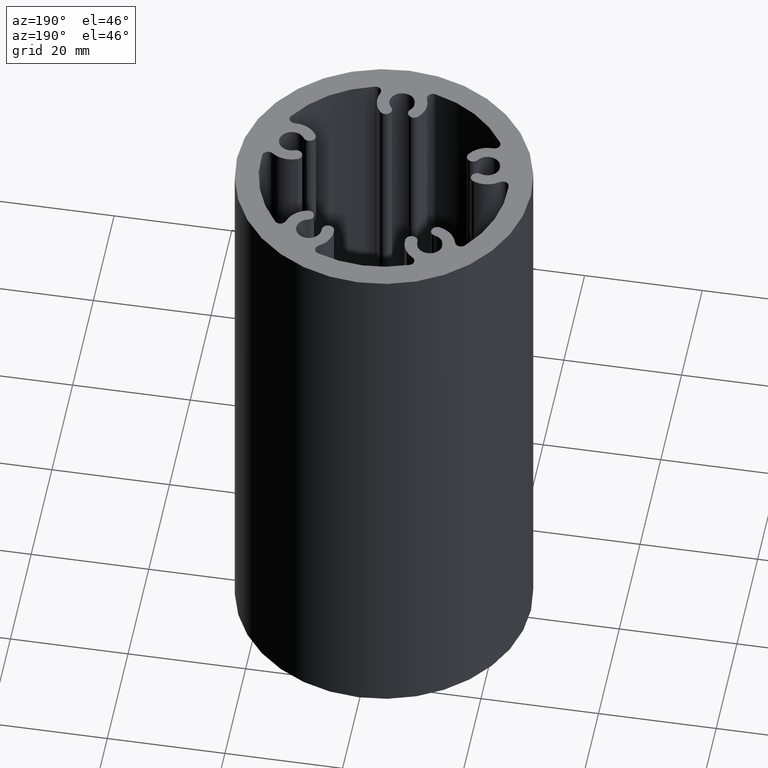
[diagram: clean part render]
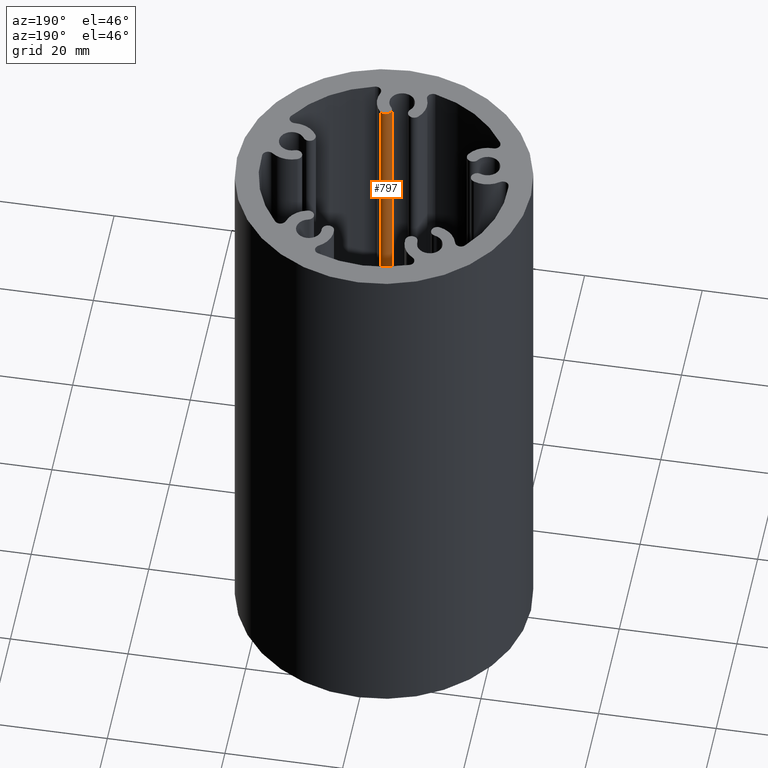
[diagram: same view with one face highlighted and labeled with its STEP entity id]
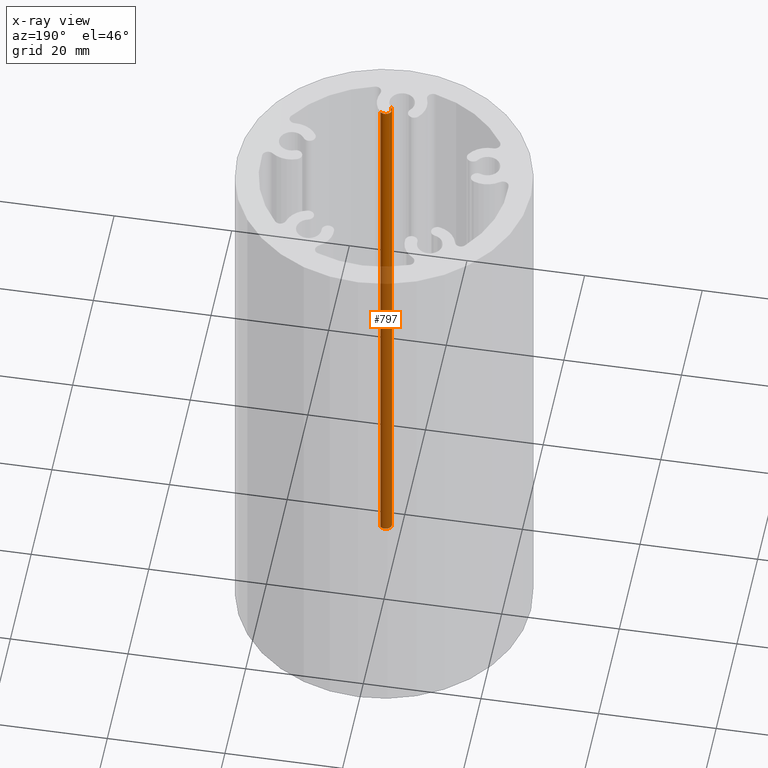
[diagram: x-ray of the same camera — body ghosted, the highlighted face saturated]
A machine part, auxiliary view. The second image highlights one B-rep face of the part: STEP entity #797.
The next image is the same camera in x-ray: the body ghosted, the highlighted face saturated — about 63% of this face is hidden behind the body in this view.
In plain terms, the highlighted cylindrical surface (edge-blend (fillet) strip) has radius 1.05 mm, axis along (0, 0, 1).
Its self-contained STEP definition (entity closure, byte-faithful):
#57=FACE_OUTER_BOUND('',#100,.T.);
#100=EDGE_LOOP('',(#623,#624,#625,#626));
#183=CIRCLE('',#917,1.05000000000311);
#184=CIRCLE('',#918,1.05000000000311);
#228=LINE('',#1446,#268);
#229=LINE('',#1452,#269);
#268=VECTOR('',#1189,100.);
#269=VECTOR('',#1196,100.);
#345=VERTEX_POINT('',#1443);
#346=VERTEX_POINT('',#1445);
#347=VERTEX_POINT('',#1449);
#348=VERTEX_POINT('',#1451);
#463=EDGE_CURVE('',#346,#345,#228,.T.);
#465=EDGE_CURVE('',#347,#345,#183,.T.);
#466=EDGE_CURVE('',#348,#347,#229,.T.);
#467=EDGE_CURVE('',#346,#348,#184,.T.);
#623=ORIENTED_EDGE('',*,*,#463,.T.);
#624=ORIENTED_EDGE('',*,*,#465,.F.);
#625=ORIENTED_EDGE('',*,*,#466,.F.);
#626=ORIENTED_EDGE('',*,*,#467,.F.);
#756=CYLINDRICAL_SURFACE('',#916,1.05000000000311);
#797=ADVANCED_FACE('',(#57),#756,.T.);
#916=AXIS2_PLACEMENT_3D('',#1448,#1192,#1193);
#917=AXIS2_PLACEMENT_3D('',#1450,#1194,#1195);
#918=AXIS2_PLACEMENT_3D('',#1453,#1197,#1198);
#1189=DIRECTION('',(0.,0.,-1.));
#1192=DIRECTION('center_axis',(0.,0.,1.));
#1193=DIRECTION('ref_axis',(0.756481741032976,0.654014812893193,0.));
#1194=DIRECTION('center_axis',(0.,0.,-1.));
#1195=DIRECTION('ref_axis',(0.756481741032976,0.654014812893193,0.));
#1196=DIRECTION('',(0.,0.,-1.));
#1197=DIRECTION('center_axis',(0.,0.,1.));
#1198=DIRECTION('ref_axis',(0.756481741032976,0.654014812893193,0.));
#1443=CARTESIAN_POINT('',(3.21504739938963,-14.7204328414163,-50.));
#1445=CARTESIAN_POINT('',(3.21504739938963,-14.7204328414163,50.));
#1446=CARTESIAN_POINT('',(3.21504739938963,-14.7204328414163,0.));
#1448=CARTESIAN_POINT('Origin',(2.42074157130531,-15.4071483949539,0.));
#1449=CARTESIAN_POINT('',(1.6264357432206,-16.0938639484918,-50.));
#1450=CARTESIAN_POINT('Origin',(2.42074157130531,-15.4071483949539,-50.));
#1451=CARTESIAN_POINT('',(1.6264357432206,-16.0938639484918,50.));
#1452=CARTESIAN_POINT('',(1.6264357432206,-16.0938639484918,0.));
#1453=CARTESIAN_POINT('Origin',(2.42074157130531,-15.4071483949539,50.));